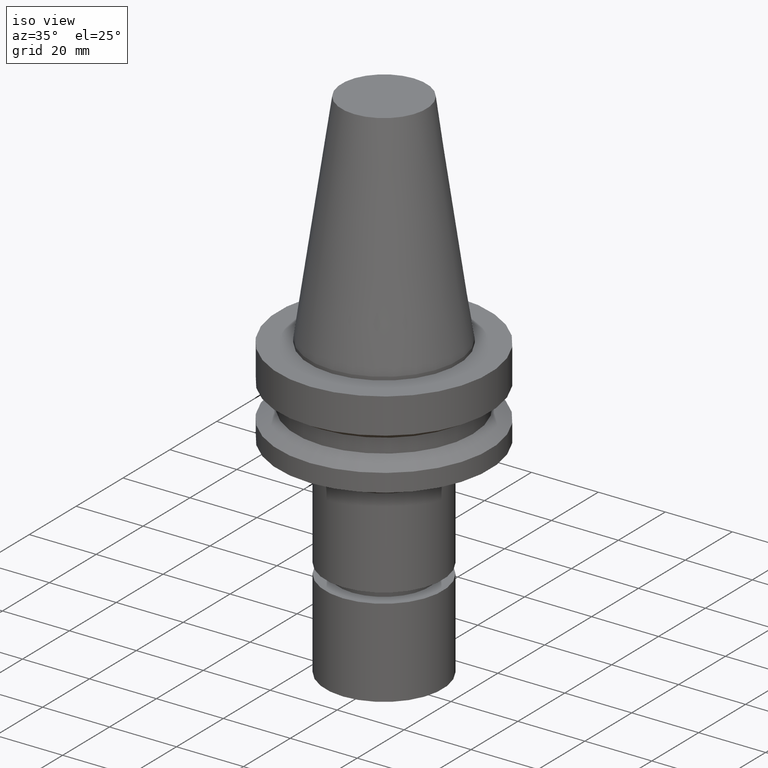
[diagram: clean part render]
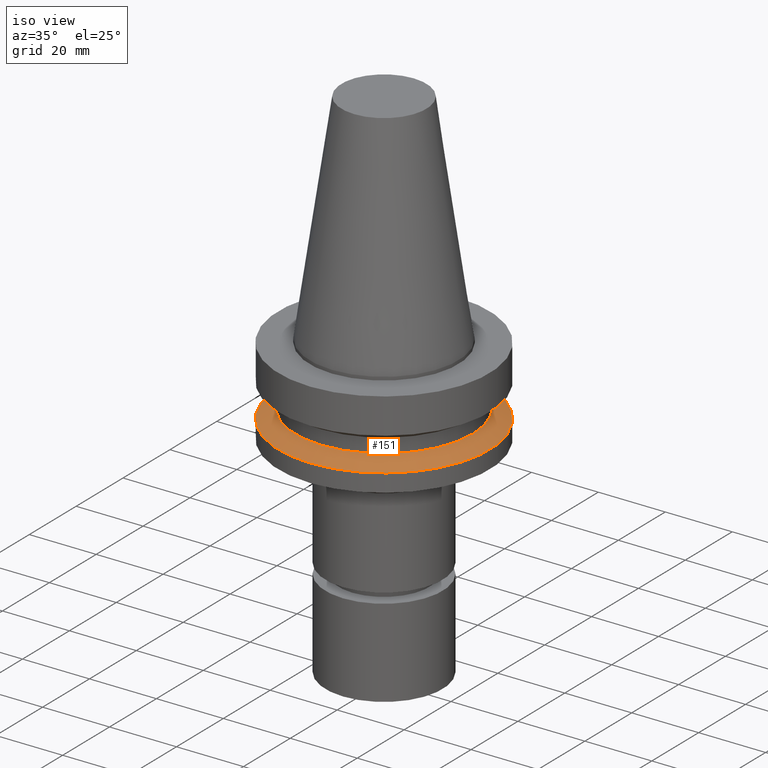
[diagram: same view with one face highlighted and labeled with its STEP entity id]
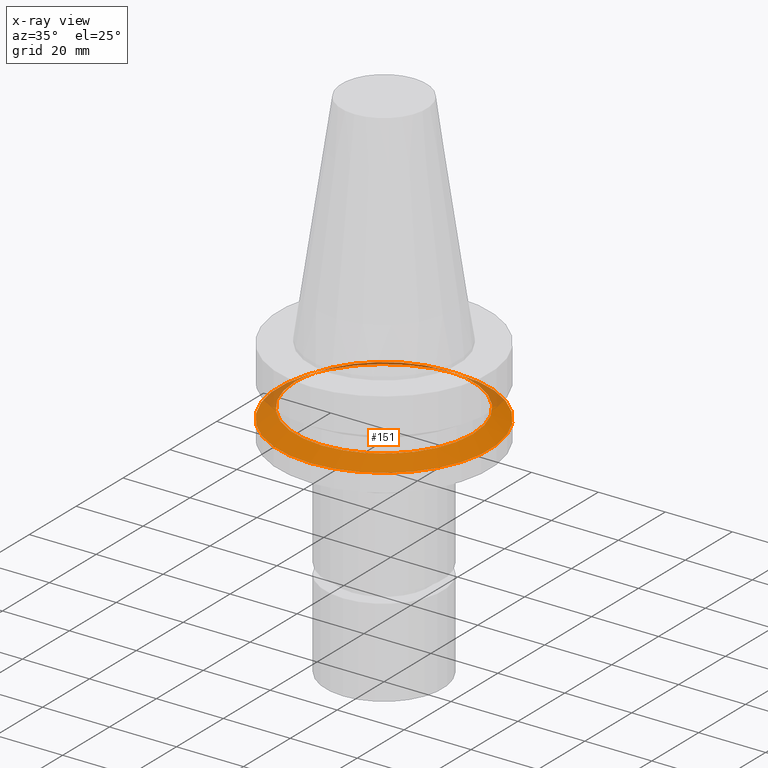
[diagram: x-ray of the same camera — body ghosted, the highlighted face saturated]
A machine part, iso view. The second image highlights one B-rep face of the part: STEP entity #151.
The next image is the same camera in x-ray: the body ghosted, the highlighted face saturated — about 11% of this face is hidden behind the body in this view.
In plain terms, the highlighted conical surface has half-angle 60 deg.
Its self-contained STEP definition (entity closure, byte-faithful):
#80=EDGE_CURVE('Unnamed[1]',#207,#207,#208,.T.);
#130=EDGE_CURVE('Unnamed[1]',#284,#284,#285,.T.);
#151=ADVANCED_FACE('Unnamed[1]',(#316,#317),#318,.T.);
#207=VERTEX_POINT('',#384);
#208=CIRCLE('',#385,26.5);
#284=VERTEX_POINT('',#481);
#285=CIRCLE('',#482,31.5000000000007);
#316=FACE_BOUND('',#519,.T.);
#317=FACE_BOUND('',#520,.T.);
#318=CONICAL_SURFACE('',#521,29.0000000000003,1.04719755119651);
#384=CARTESIAN_POINT('',(1.1479681728942E-015,26.5,-18.7477430013855));
#385=AXIS2_PLACEMENT_3D('',#584,#585,#586);
#481=CARTESIAN_POINT('',(1.32473071268174E-015,31.5000000000007,-21.6344943473346));
#482=AXIS2_PLACEMENT_3D('',#671,#672,#673);
#519=EDGE_LOOP('',(#706));
#520=EDGE_LOOP('',(#707));
#521=AXIS2_PLACEMENT_3D('',#708,#709,#710);
#584=CARTESIAN_POINT('',(1.1479681728942E-015,6.38712593170646E-014,-18.7477430013855));
#585=DIRECTION('',(6.12323399573677E-017,-1.56164866711515E-016,-1.0));
#586=DIRECTION('',(4.73518747710149E-033,1.0,-1.56164866711515E-016));
#671=CARTESIAN_POINT('',(1.32473071268174E-015,6.34204501778952E-014,-21.6344943473346));
#672=DIRECTION('',(6.12323399573677E-017,-1.56164866711429E-016,-1.0));
#673=DIRECTION('',(4.73518747709773E-033,1.0,-1.56164866711429E-016));
#706=ORIENTED_EDGE('',*,*,#130,.F.);
#707=ORIENTED_EDGE('',*,*,#80,.T.);
#708=CARTESIAN_POINT('',(1.23634944278797E-015,6.36458547474799E-014,-20.1911186743601));
#709=DIRECTION('',(6.12323399573677E-017,-1.56164866711412E-016,-1.0));
#710=DIRECTION('',(4.73518747710563E-033,1.0,-1.56164866711412E-016));